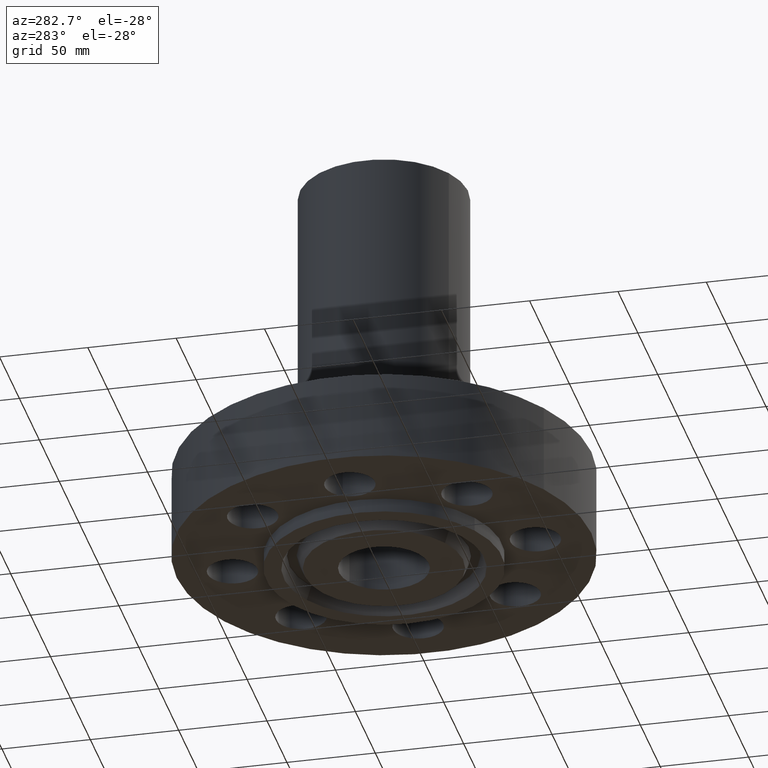
[diagram: clean part render]
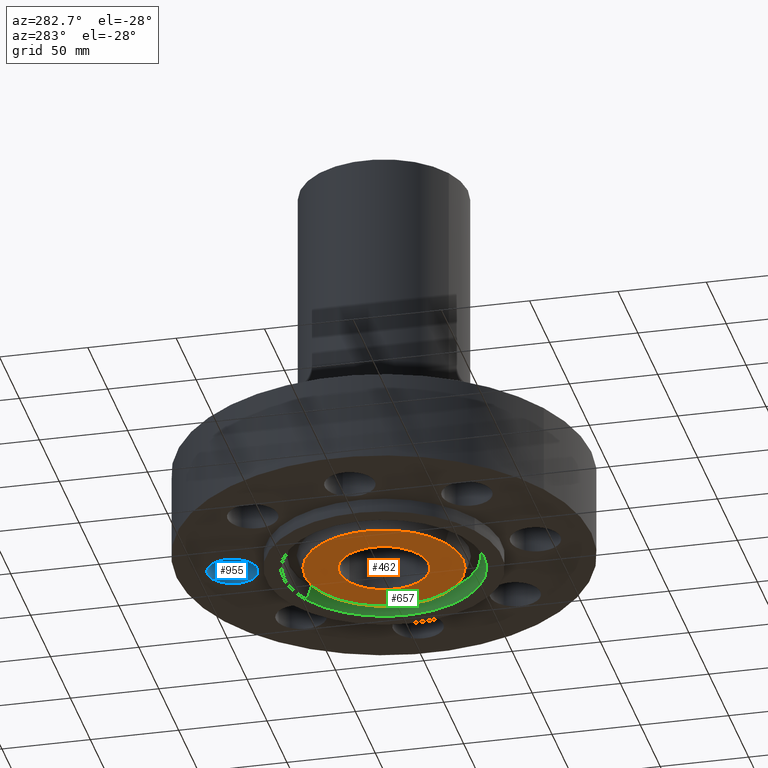
[diagram: same view with three faces highlighted in distinct colors, each labeled with its STEP entity id]
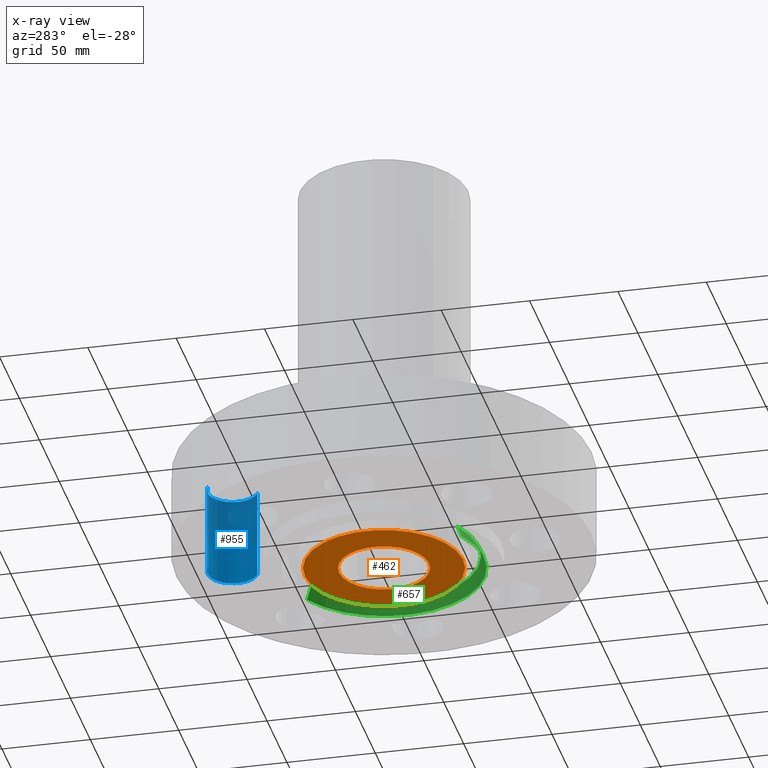
[diagram: x-ray of the same camera — body ghosted, the three highlighted faces saturated]
A machine part, auxiliary view with three faces highlighted in distinct colors.
The next image is the same camera in x-ray (body ghosted, the three faces saturated) — at least one of them is partly hidden behind the body in this view.
Their STEP definitions:

[orange] entity #462 — the highlighted planar face has unit normal (0, 0, -1).
#406=AXIS2_PLACEMENT_3D('Circle Axis2P3D',#404,#405,$) ;
#425=AXIS2_PLACEMENT_3D('Circle Axis2P3D',#423,#424,$) ;
#438=AXIS2_PLACEMENT_3D('Plane Axis2P3D',#435,#436,#437) ;
#442=AXIS2_PLACEMENT_3D('Circle Axis2P3D',#440,#441,$) ;
#451=AXIS2_PLACEMENT_3D('Circle Axis2P3D',#449,#450,$) ;
#401=CARTESIAN_POINT('Vertex',(0.479425538606,0.877582561894,-0.313000000001)) ;
#404=CARTESIAN_POINT('Axis2P3D Location',(0.,0.,-0.313000000001)) ;
#408=CARTESIAN_POINT('Vertex',(-0.479425538606,-0.877582561894,-0.313000000001)) ;
#423=CARTESIAN_POINT('Axis2P3D Location',(0.,0.,-0.313000000001)) ;
#435=CARTESIAN_POINT('Axis2P3D Location',(0.,1.,-0.313000000001)) ;
#440=CARTESIAN_POINT('Axis2P3D Location',(0.,0.,-0.313000000001)) ;
#444=CARTESIAN_POINT('Vertex',(-0.846425788409,-1.54937201302,-0.313000000001)) ;
#446=CARTESIAN_POINT('Vertex',(0.846425788409,1.54937201302,-0.313000000001)) ;
#449=CARTESIAN_POINT('Axis2P3D Location',(0.,0.,-0.313000000001)) ;
#405=DIRECTION('Axis2P3D Direction',(0.,0.,-0.0393700787402)) ;
#424=DIRECTION('Axis2P3D Direction',(0.,0.,-0.0393700787402)) ;
#436=DIRECTION('Axis2P3D Direction',(0.,0.,-0.0393700787402)) ;
#437=DIRECTION('Axis2P3D XDirection',(0.0393700787402,0.,0.)) ;
#441=DIRECTION('Axis2P3D Direction',(0.,0.,-0.0393700787402)) ;
#450=DIRECTION('Axis2P3D Direction',(0.,0.,-0.0393700787402)) ;
#455=ORIENTED_EDGE('',*,*,#448,.T.) ;
#456=ORIENTED_EDGE('',*,*,#453,.T.) ;
#459=ORIENTED_EDGE('',*,*,#410,.F.) ;
#460=ORIENTED_EDGE('',*,*,#427,.F.) ;
#461=FACE_BOUND('',#458,.T.) ;
#462=ADVANCED_FACE('PartBody',(#457,#461),#439,.T.) ;
#407=CIRCLE('generated circle',#406,1.) ;
#426=CIRCLE('generated circle',#425,1.) ;
#443=CIRCLE('generated circle',#442,1.76550000001) ;
#452=CIRCLE('generated circle',#451,1.76550000001) ;
#410=EDGE_CURVE('',#402,#409,#407,.T.) ;
#427=EDGE_CURVE('',#409,#402,#426,.T.) ;
#448=EDGE_CURVE('',#445,#447,#443,.T.) ;
#453=EDGE_CURVE('',#447,#445,#452,.T.) ;
#454=EDGE_LOOP('',(#455,#456)) ;
#458=EDGE_LOOP('',(#459,#460)) ;
#457=FACE_OUTER_BOUND('',#454,.T.) ;
#439=PLANE('',#438) ;
#402=VERTEX_POINT('',#401) ;
#409=VERTEX_POINT('',#408) ;
#445=VERTEX_POINT('',#444) ;
#447=VERTEX_POINT('',#446) ;

[blue] entity #955 — the highlighted cylindrical surface (edge-blend (fillet) strip) has radius 14.224 mm, axis along (0, 0, 1).
#217=AXIS2_PLACEMENT_3D('Circle Axis2P3D',#215,#216,$) ;
#928=AXIS2_PLACEMENT_3D('Cylinder Axis2P3D',#925,#926,#927) ;
#939=AXIS2_PLACEMENT_3D('Circle Axis2P3D',#937,#938,$) ;
#215=CARTESIAN_POINT('Axis2P3D Location',(-8.39223703654E-016,3.37500000001,0.)) ;
#219=CARTESIAN_POINT('Vertex',(-0.268478301619,3.86644623467,0.)) ;
#221=CARTESIAN_POINT('Vertex',(0.268478301619,2.88355376535,0.)) ;
#925=CARTESIAN_POINT('Axis2P3D Location',(-6.19977442071E-016,3.37500000001,0.00393700787402)) ;
#930=CARTESIAN_POINT('Line Origine',(0.268478301619,2.88355376535,1.)) ;
#934=CARTESIAN_POINT('Vertex',(0.268478301619,2.88355376535,2.00000000001)) ;
#937=CARTESIAN_POINT('Axis2P3D Location',(-6.19977442071E-016,3.37500000001,2.00000000001)) ;
#941=CARTESIAN_POINT('Vertex',(-0.268478301619,3.86644623467,2.00000000001)) ;
#944=CARTESIAN_POINT('Line Origine',(-0.268478301619,3.86644623467,1.)) ;
#216=DIRECTION('Axis2P3D Direction',(0.,0.,-0.0393700787402)) ;
#926=DIRECTION('Axis2P3D Direction',(0.,0.,0.0393700787402)) ;
#927=DIRECTION('Axis2P3D XDirection',(-0.0188750212049,0.0345504945626,0.)) ;
#931=DIRECTION('Vector Direction',(0.,0.,0.0393700787402)) ;
#938=DIRECTION('Axis2P3D Direction',(0.,0.,0.0393700787402)) ;
#945=DIRECTION('Vector Direction',(0.,0.,0.0393700787402)) ;
#932=VECTOR('Line Direction',#931,0.0393700787402) ;
#946=VECTOR('Line Direction',#945,0.0393700787402) ;
#950=ORIENTED_EDGE('',*,*,#936,.F.) ;
#951=ORIENTED_EDGE('',*,*,#943,.F.) ;
#952=ORIENTED_EDGE('',*,*,#948,.T.) ;
#953=ORIENTED_EDGE('',*,*,#223,.T.) ;
#955=ADVANCED_FACE('PartBody',(#954),#929,.F.) ;
#218=CIRCLE('generated circle',#217,0.560000000002) ;
#940=CIRCLE('generated circle',#939,0.560000000002) ;
#929=CYLINDRICAL_SURFACE('generated cylinder',#928,0.560000000002) ;
#223=EDGE_CURVE('',#220,#222,#218,.T.) ;
#936=EDGE_CURVE('',#935,#222,#933,.F.) ;
#943=EDGE_CURVE('',#942,#935,#940,.F.) ;
#948=EDGE_CURVE('',#942,#220,#947,.F.) ;
#949=EDGE_LOOP('',(#950,#951,#952,#953)) ;
#954=FACE_OUTER_BOUND('',#949,.T.) ;
#933=LINE('Line',#930,#932) ;
#947=LINE('Line',#944,#946) ;
#220=VERTEX_POINT('',#219) ;
#222=VERTEX_POINT('',#221) ;
#935=VERTEX_POINT('',#934) ;
#942=VERTEX_POINT('',#941) ;

[green] entity #657 — the highlighted conical surface has half-angle 23 deg.
#605=AXIS2_PLACEMENT_3D('Circle Axis2P3D',#603,#604,$) ;
#618=AXIS2_PLACEMENT_3D('Cone Axis2P3D',#615,#616,#617) ;
#648=AXIS2_PLACEMENT_3D('Circle Axis2P3D',#646,#647,$) ;
#581=CARTESIAN_POINT('Vertex',(-1.01142324242,-1.85139782671,-0.0188873350169)) ;
#588=CARTESIAN_POINT('Vertex',(1.01142324242,1.85139782671,-0.0188873350169)) ;
#603=CARTESIAN_POINT('Axis2P3D Location',(0.,0.,-0.0188873350169)) ;
#615=CARTESIAN_POINT('Axis2P3D Location',(0.,0.,-0.0188873350169)) ;
#620=CARTESIAN_POINT('Line Origine',(-1.04134980422,-1.90617803063,-0.165943667509)) ;
#624=CARTESIAN_POINT('Vertex',(-1.07127636602,-1.96095823455,-0.313000000001)) ;
#631=CARTESIAN_POINT('Vertex',(1.07127636602,1.96095823455,-0.313000000001)) ;
#634=CARTESIAN_POINT('Line Origine',(1.04134980422,1.90617803063,-0.165943667509)) ;
#646=CARTESIAN_POINT('Axis2P3D Location',(0.,0.,-0.313000000001)) ;
#604=DIRECTION('Axis2P3D Direction',(0.,0.,-0.0393700787402)) ;
#616=DIRECTION('Axis2P3D Direction',(0.,0.,-0.0393700787402)) ;
#617=DIRECTION('Axis2P3D XDirection',(0.0188750212049,0.0345504945626,0.)) ;
#621=DIRECTION('Vector Direction',(-0.00737505833565,-0.0134999537303,-0.0362403485611)) ;
#635=DIRECTION('Vector Direction',(0.00737505833565,0.0134999537303,-0.0362403485611)) ;
#647=DIRECTION('Axis2P3D Direction',(0.,0.,-0.0393700787402)) ;
#622=VECTOR('Line Direction',#621,0.0393700787402) ;
#636=VECTOR('Line Direction',#635,0.0393700787402) ;
#652=ORIENTED_EDGE('',*,*,#607,.F.) ;
#653=ORIENTED_EDGE('',*,*,#638,.T.) ;
#654=ORIENTED_EDGE('',*,*,#650,.T.) ;
#655=ORIENTED_EDGE('',*,*,#626,.F.) ;
#657=ADVANCED_FACE('PartBody',(#656),#619,.F.) ;
#606=CIRCLE('generated circle',#605,2.10965658059) ;
#649=CIRCLE('generated circle',#648,2.23450000001) ;
#619=CONICAL_SURFACE('Cone',#618,2.10965658059,0.401425727959) ;
#607=EDGE_CURVE('',#589,#582,#606,.T.) ;
#626=EDGE_CURVE('',#582,#625,#623,.T.) ;
#638=EDGE_CURVE('',#589,#632,#637,.T.) ;
#650=EDGE_CURVE('',#632,#625,#649,.T.) ;
#651=EDGE_LOOP('',(#652,#653,#654,#655)) ;
#656=FACE_OUTER_BOUND('',#651,.T.) ;
#623=LINE('Line',#620,#622) ;
#637=LINE('Line',#634,#636) ;
#582=VERTEX_POINT('',#581) ;
#589=VERTEX_POINT('',#588) ;
#625=VERTEX_POINT('',#624) ;
#632=VERTEX_POINT('',#631) ;